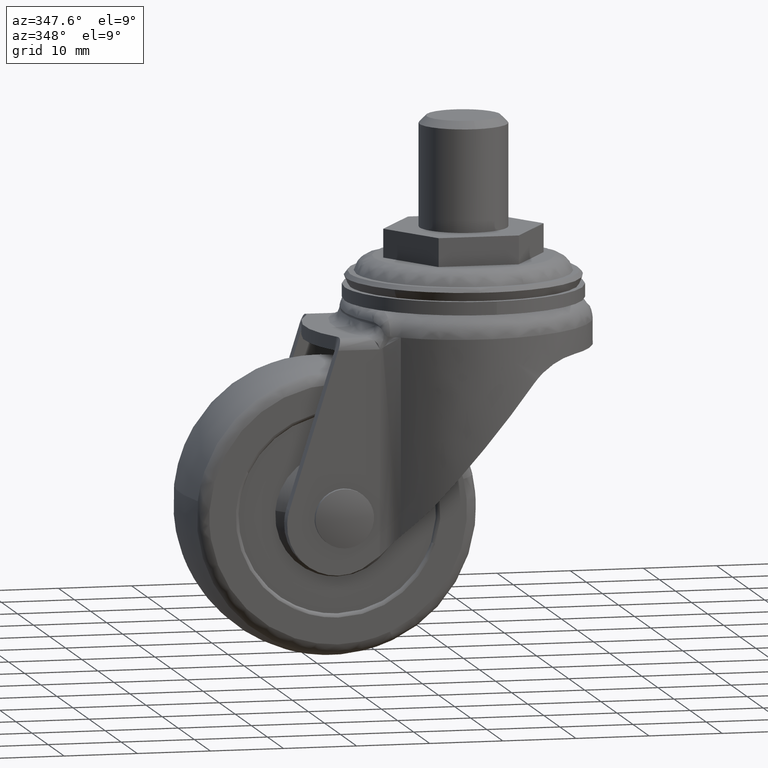
[diagram: clean part render]
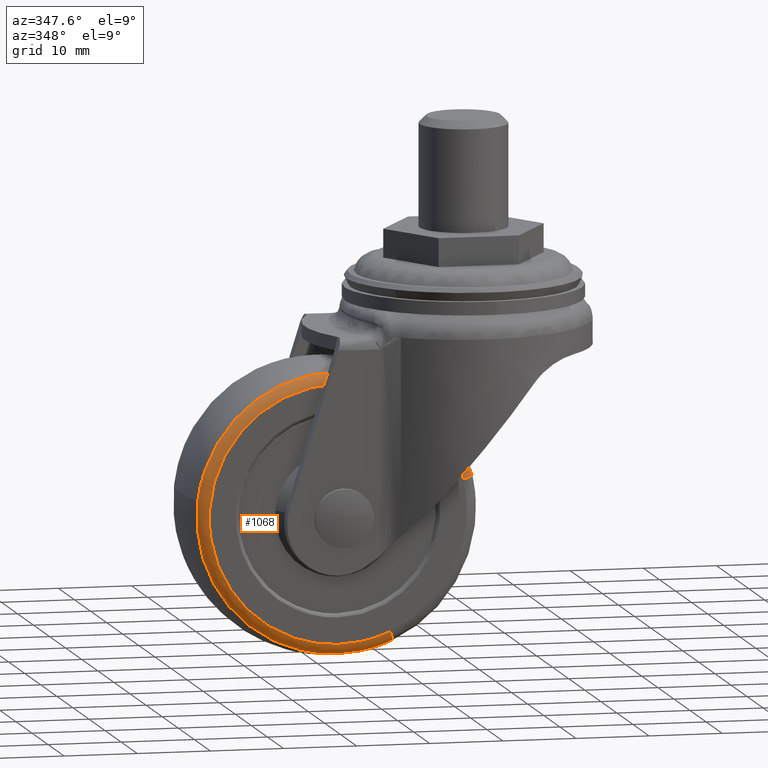
[diagram: same view with one face highlighted and labeled with its STEP entity id]
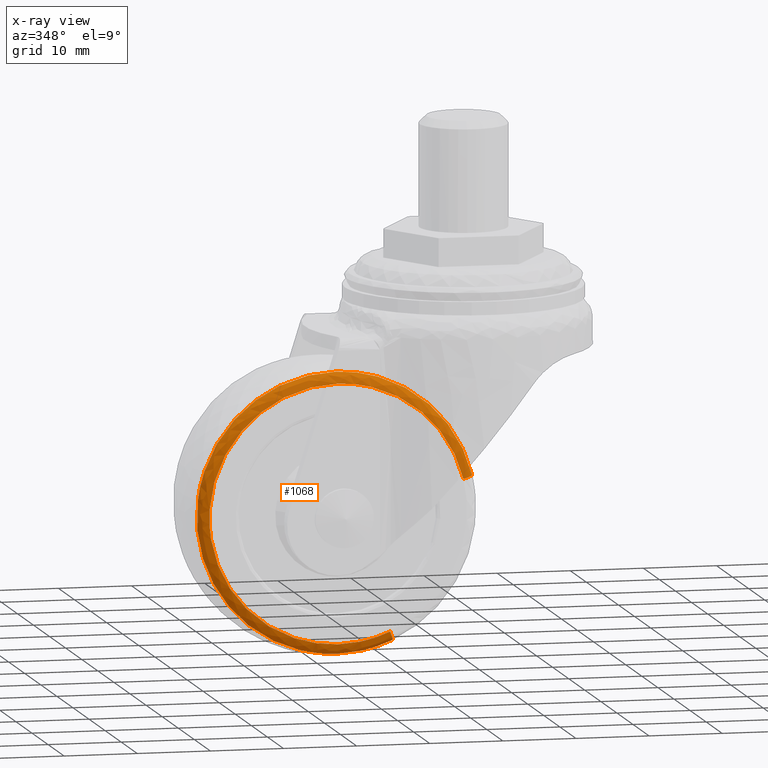
[diagram: x-ray of the same camera — body ghosted, the highlighted face saturated]
A machine part, auxiliary view. The second image highlights one B-rep face of the part: STEP entity #1068.
The next image is the same camera in x-ray: the body ghosted, the highlighted face saturated — about 0% of this face is hidden behind the body in this view.
In plain terms, the highlighted face is a freeform B-spline surface patch.
Its self-contained STEP definition (entity closure, byte-faithful):
#857=CARTESIAN_POINT('',(-11.905930238474140,-8.499999999999998,-49.236442498786673));
#858=VERTEX_POINT('',#857);
#859=CARTESIAN_POINT('',(-1.873067296999193,-8.500000000000000,-28.931243011777742));
#860=VERTEX_POINT('',#859);
#876=CARTESIAN_POINT('',(-11.320739615115160,-7.368420571738975,-50.567538985142001));
#877=VERTEX_POINT('',#876);
#878=CARTESIAN_POINT('',(-11.320739615115158,-7.368420571738975,-50.567538985142001));
#879=CARTESIAN_POINT('',(-11.436129164492783,-8.499999999892870,-50.305069598914926));
#880=CARTESIAN_POINT('',(-11.905930238474141,-8.499999999999998,-49.236442498786673));
#888=(BOUNDED_CURVE()B_SPLINE_CURVE(2,(#878,#879,#880),.UNSPECIFIED.,.F.,.U.)B_SPLINE_CURVE_WITH_KNOTS((3,3),(-1.690380575741172,-0.313178852568609),.UNSPECIFIED.)CURVE()GEOMETRIC_REPRESENTATION_ITEM()RATIONAL_B_SPLINE_CURVE((0.840414073506291,0.662877654033796,0.839498740457111))REPRESENTATION_ITEM(''));
#889=EDGE_CURVE('',#877,#858,#888,.T.);
#891=CARTESIAN_POINT('',(-0.460263569434891,-7.368413755446834,-28.587361010762582));
#892=VERTEX_POINT('',#891);
#908=CARTESIAN_POINT('',(-0.460263569434891,-7.368413755446835,-28.587361010762582));
#909=CARTESIAN_POINT('',(-0.738839731245575,-8.499999999702336,-28.655167547580621));
#910=CARTESIAN_POINT('',(-1.873067296999193,-8.500000000000000,-28.931243011777742));
#918=(BOUNDED_CURVE()B_SPLINE_CURVE(2,(#908,#909,#910),.UNSPECIFIED.,.F.,.U.)B_SPLINE_CURVE_WITH_KNOTS((3,3),(-1.690385724909053,-0.313178852751512),.UNSPECIFIED.)CURVE()GEOMETRIC_REPRESENTATION_ITEM()RATIONAL_B_SPLINE_CURVE((0.895830630909932,0.706585713106754,0.894853527557359))REPRESENTATION_ITEM(''));
#919=EDGE_CURVE('',#892,#860,#918,.T.);
#924=CARTESIAN_POINT('',(-0.441159097939545,-7.279578756111254,-28.582710907039370));
#925=CARTESIAN_POINT('',(-4.958454190900058,-7.279578756111253,-10.023870004978928));
#926=CARTESIAN_POINT('',(-23.517295092960506,-7.279578756111254,-14.541165097939434));
#927=CARTESIAN_POINT('',(-42.076135995020962,-7.279578756111253,-19.058460190899947));
#928=CARTESIAN_POINT('',(-37.558840902060453,-7.279578756111254,-37.617301092960403));
#929=CARTESIAN_POINT('',(-33.041545809099937,-7.279578756111253,-56.176141995020849));
#930=CARTESIAN_POINT('',(-14.482704907039484,-7.279578756111254,-51.658846902060340));
#931=CARTESIAN_POINT('',(-12.850570090300931,-7.279578756111254,-51.261578848650565));
#932=CARTESIAN_POINT('',(-11.312825983714486,-7.279578756111254,-50.585539627207901));
#933=CARTESIAN_POINT('',(-0.680386615194737,-8.577411599548102,-28.640939828527575));
#934=CARTESIAN_POINT('',(-5.139452786667054,-8.577411599548100,-10.321326443722317));
#935=CARTESIAN_POINT('',(-23.459066171472305,-8.577411599548102,-14.780392615194636));
#936=CARTESIAN_POINT('',(-41.778679556277567,-8.577411599548100,-19.239458786666944));
#937=CARTESIAN_POINT('',(-37.319613384805258,-8.577411599548102,-37.559072171472209));
#938=CARTESIAN_POINT('',(-32.860547213332936,-8.577411599548100,-55.878685556277460));
#939=CARTESIAN_POINT('',(-14.540933828527681,-8.577411599548102,-51.419619384805145));
#940=CARTESIAN_POINT('',(-12.929837586455221,-8.577411599548102,-51.027472203469443));
#941=CARTESIAN_POINT('',(-11.411915337641780,-8.577411599548102,-50.360147275412132));
#942=CARTESIAN_POINT('',(-1.961527228775287,-8.497234529113042,-28.952774508164136));
#943=CARTESIAN_POINT('',(-6.108758720611049,-8.497234529113042,-11.914301736939425));
#944=CARTESIAN_POINT('',(-23.147231491835768,-8.497234529113042,-16.061533228775190));
#945=CARTESIAN_POINT('',(-40.185704263060479,-8.497234529113042,-20.208764720610937));
#946=CARTESIAN_POINT('',(-36.038472771224725,-8.497234529113042,-37.247237491835662));
#947=CARTESIAN_POINT('',(-31.891241279388950,-8.497234529113042,-54.285710263060366));
#948=CARTESIAN_POINT('',(-14.852768508164242,-8.497234529113042,-50.138478771224612));
#949=CARTESIAN_POINT('',(-13.354340627849778,-8.497234529113042,-49.773755513634292));
#950=CARTESIAN_POINT('',(-11.942570828892377,-8.497234529113042,-49.153098440942195));
#958=(BOUNDED_SURFACE()B_SPLINE_SURFACE(2,2,((#924,#933,#942),(#925,#934,#943),(#926,#935,#944),(#927,#936,#945),(#928,#937,#946),(#929,#938,#947),(#930,#939,#948),(#931,#940,#949),(#932,#941,#950)),.UNSPECIFIED.,.F.,.F.,.U.)B_SPLINE_SURFACE_WITH_KNOTS((3,2,2,2,3),(3,3),(0.0,31.647066859365530,63.294133718731047,94.941200578096584,98.738848601220454),(0.0,2.265349282946453),.UNSPECIFIED.)GEOMETRIC_REPRESENTATION_ITEM()RATIONAL_B_SPLINE_SURFACE(((0.915679313023518,0.686786239255175,0.914603796895972),(0.647483051631169,0.485631207002941,0.646722546884106),(0.915679313023518,0.686786239255175,0.914603796895972),(0.647483051631169,0.485631207002941,0.646722546884106),(0.915679313023518,0.686786239255175,0.914603796895972),(0.647483051631169,0.485631207002941,0.646722546884106),(0.915679313023518,0.686786239255175,0.914603796895972),(0.883495761656436,0.662647635384907,0.882458046894548),(0.859036262617454,0.644302296443503,0.858027276893466)))REPRESENTATION_ITEM('')SURFACE());
#959=CARTESIAN_POINT('',(-19.0,-8.500000000000000,-50.726985567082487));
#960=VERTEX_POINT('',#959);
#961=CARTESIAN_POINT('',(-19.0,-8.500000000000000,-50.726985567082487));
#962=CARTESIAN_POINT('',(-15.296375269324967,-8.500000000000000,-50.726985567082494));
#963=CARTESIAN_POINT('',(-11.905930238474141,-8.499999999999998,-49.236442498786673));
#971=(BOUNDED_CURVE()B_SPLINE_CURVE(2,(#961,#962,#963),.UNSPECIFIED.,.F.,.U.)B_SPLINE_CURVE_WITH_KNOTS((3,3),(0.0,0.068337989564840),.UNSPECIFIED.)CURVE()GEOMETRIC_REPRESENTATION_ITEM()RATIONAL_B_SPLINE_CURVE((1.0,0.919937065076456,0.883644850243597))REPRESENTATION_ITEM(''));
#972=EDGE_CURVE('',#960,#858,#971,.T.);
#973=ORIENTED_EDGE('',*,*,#972,.F.);
#974=CARTESIAN_POINT('',(-19.0,-8.500000000000000,-15.473026432917299));
#975=VERTEX_POINT('',#974);
#976=CARTESIAN_POINT('',(-19.0,-8.500000000000000,-15.473026432917299));
#977=CARTESIAN_POINT('',(-36.626979567082593,-8.500000000000002,-15.473026432917299));
#978=CARTESIAN_POINT('',(-36.626979567082593,-8.500000000000000,-33.100005999999887));
#979=CARTESIAN_POINT('',(-36.626979567082593,-8.500000000000002,-50.726985567082501));
#980=CARTESIAN_POINT('',(-19.0,-8.500000000000000,-50.726985567082487));
#988=(BOUNDED_CURVE()B_SPLINE_CURVE(2,(#976,#977,#978,#979,#980),.UNSPECIFIED.,.F.,.U.)B_SPLINE_CURVE_WITH_KNOTS((3,2,3),(0.500000000000000,0.750000000000000,1.0),.UNSPECIFIED.)CURVE()GEOMETRIC_REPRESENTATION_ITEM()RATIONAL_B_SPLINE_CURVE((1.0,0.707106781186548,1.0,0.707106781186548,1.0))REPRESENTATION_ITEM(''));
#989=EDGE_CURVE('',#975,#960,#988,.T.);
#990=ORIENTED_EDGE('',*,*,#989,.F.);
#991=CARTESIAN_POINT('',(-1.873067296999193,-8.500000000000000,-28.931243011777735));
#992=CARTESIAN_POINT('',(-5.148850307171939,-8.500000000000000,-15.473026432917301));
#993=CARTESIAN_POINT('',(-19.0,-8.500000000000000,-15.473026432917299));
#1001=(BOUNDED_CURVE()B_SPLINE_CURVE(2,(#991,#992,#993),.UNSPECIFIED.,.F.,.U.)B_SPLINE_CURVE_WITH_KNOTS((3,3),(0.290401677692829,0.500000000000000),.UNSPECIFIED.)CURVE()GEOMETRIC_REPRESENTATION_ITEM()RATIONAL_B_SPLINE_CURVE((0.920631806224319,0.754440290886214,1.0))REPRESENTATION_ITEM(''));
#1002=EDGE_CURVE('',#860,#975,#1001,.T.);
#1003=ORIENTED_EDGE('',*,*,#1002,.F.);
#1004=ORIENTED_EDGE('',*,*,#919,.F.);
#1005=CARTESIAN_POINT('',(-19.0,-7.368408971333206,-14.018971815655270));
#1006=VERTEX_POINT('',#1005);
#1007=CARTESIAN_POINT('',(-0.460263569434891,-7.368413755446834,-28.587361010762582));
#1008=CARTESIAN_POINT('',(-4.006265901127791,-7.368408971333207,-14.018971815655272));
#1009=CARTESIAN_POINT('',(-19.0,-7.368408971333206,-14.018971815655270));
#1017=(BOUNDED_CURVE()B_SPLINE_CURVE(2,(#1007,#1008,#1009),.UNSPECIFIED.,.F.,.U.)B_SPLINE_CURVE_WITH_KNOTS((3,3),(0.290401662009067,0.500000000000000),.UNSPECIFIED.)CURVE()GEOMETRIC_REPRESENTATION_ITEM()RATIONAL_B_SPLINE_CURVE((0.920631831095782,0.754440272511543,1.0))REPRESENTATION_ITEM(''));
#1018=EDGE_CURVE('',#892,#1006,#1017,.T.);
#1019=ORIENTED_EDGE('',*,*,#1018,.T.);
#1020=CARTESIAN_POINT('',(-37.953412238017563,-7.368422365998788,-30.896849046391981));
#1021=VERTEX_POINT('',#1020);
#1022=CARTESIAN_POINT('',(-19.0,-7.368408971333206,-14.018971815655270));
#1023=CARTESIAN_POINT('',(-35.991517347814209,-7.368415668666000,-14.018973365417386));
#1024=CARTESIAN_POINT('',(-37.953412238017563,-7.368422365998788,-30.896849046391974));
#1032=(BOUNDED_CURVE()B_SPLINE_CURVE(2,(#1022,#1023,#1024),.UNSPECIFIED.,.F.,.U.)B_SPLINE_CURVE_WITH_KNOTS((3,3),(0.500000000000000,0.730000174581178),.UNSPECIFIED.)CURVE()GEOMETRIC_REPRESENTATION_ITEM()RATIONAL_B_SPLINE_CURVE((1.0,0.730538034157051,0.956886461809028))REPRESENTATION_ITEM(''));
#1033=EDGE_CURVE('',#1006,#1021,#1032,.T.);
#1034=ORIENTED_EDGE('',*,*,#1033,.T.);
#1035=CARTESIAN_POINT('',(-19.0,-7.368421052631580,-52.181037123244749));
#1036=VERTEX_POINT('',#1035);
#1037=CARTESIAN_POINT('',(-37.953412238017563,-7.368422365998788,-30.896849046391974));
#1038=CARTESIAN_POINT('',(-38.081030801210758,-7.368422332125693,-31.994731369161990));
#1039=CARTESIAN_POINT('',(-38.081030810784640,-7.368422294087092,-33.100006036320480));
#1040=CARTESIAN_POINT('',(-38.081030976064419,-7.368421637403487,-52.181037140353105));
#1041=CARTESIAN_POINT('',(-19.0,-7.368421052631580,-52.181037123244749));
#1049=(BOUNDED_CURVE()B_SPLINE_CURVE(2,(#1037,#1038,#1039,#1040,#1041),.UNSPECIFIED.,.F.,.U.)B_SPLINE_CURVE_WITH_KNOTS((3,2,3),(0.730000174581178,0.750000000000000,1.0),.UNSPECIFIED.)CURVE()GEOMETRIC_REPRESENTATION_ITEM()RATIONAL_B_SPLINE_CURVE((0.956886461809028,0.976568747029497,1.0,0.707106781186547,1.0))REPRESENTATION_ITEM(''));
#1050=EDGE_CURVE('',#1021,#1036,#1049,.T.);
#1051=ORIENTED_EDGE('',*,*,#1050,.T.);
#1052=CARTESIAN_POINT('',(-19.0,-7.368421052631580,-52.181037123244749));
#1053=CARTESIAN_POINT('',(-14.990862869810467,-7.368421052631581,-52.181037123244757));
#1054=CARTESIAN_POINT('',(-11.320739615115158,-7.368420571738975,-50.567538985141994));
#1062=(BOUNDED_CURVE()B_SPLINE_CURVE(2,(#1052,#1053,#1054),.UNSPECIFIED.,.F.,.U.)B_SPLINE_CURVE_WITH_KNOTS((3,3),(0.0,0.068337989138416),.UNSPECIFIED.)CURVE()GEOMETRIC_REPRESENTATION_ITEM()RATIONAL_B_SPLINE_CURVE((1.0,0.919937065576042,0.883644850696517))REPRESENTATION_ITEM(''));
#1063=EDGE_CURVE('',#1036,#877,#1062,.T.);
#1064=ORIENTED_EDGE('',*,*,#1063,.T.);
#1065=ORIENTED_EDGE('',*,*,#889,.T.);
#1066=EDGE_LOOP('',(#973,#990,#1003,#1004,#1019,#1034,#1051,#1064,#1065));
#1067=FACE_OUTER_BOUND('',#1066,.T.);
#1068=ADVANCED_FACE('',(#1067),#958,.T.);